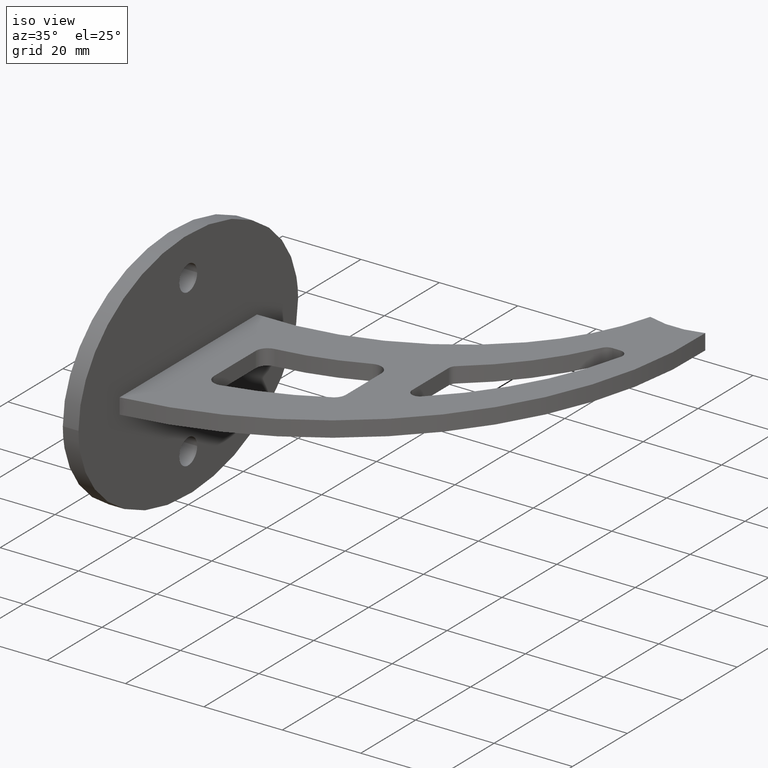
[diagram: clean part render]
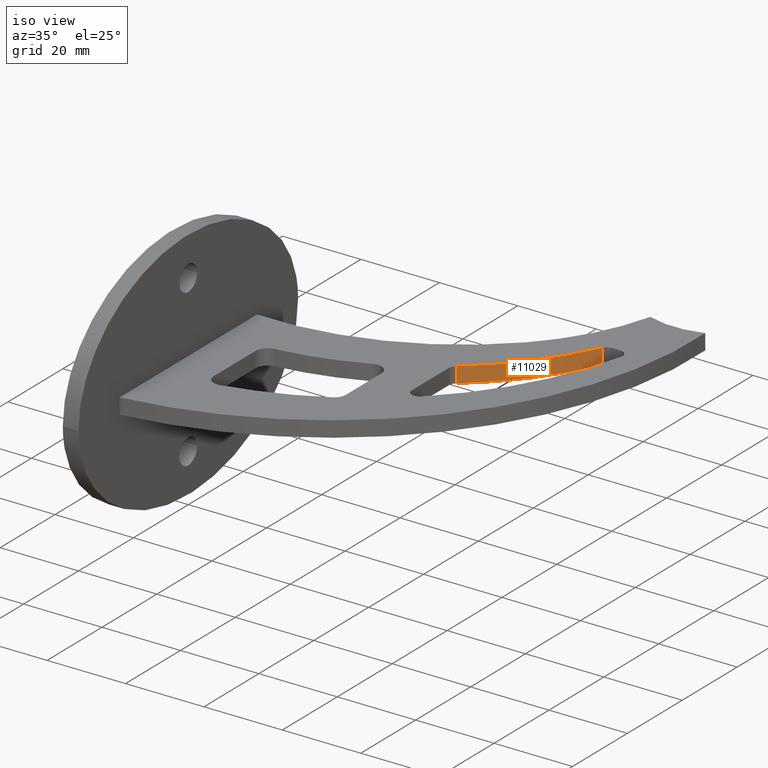
[diagram: same view with one face highlighted and labeled with its STEP entity id]
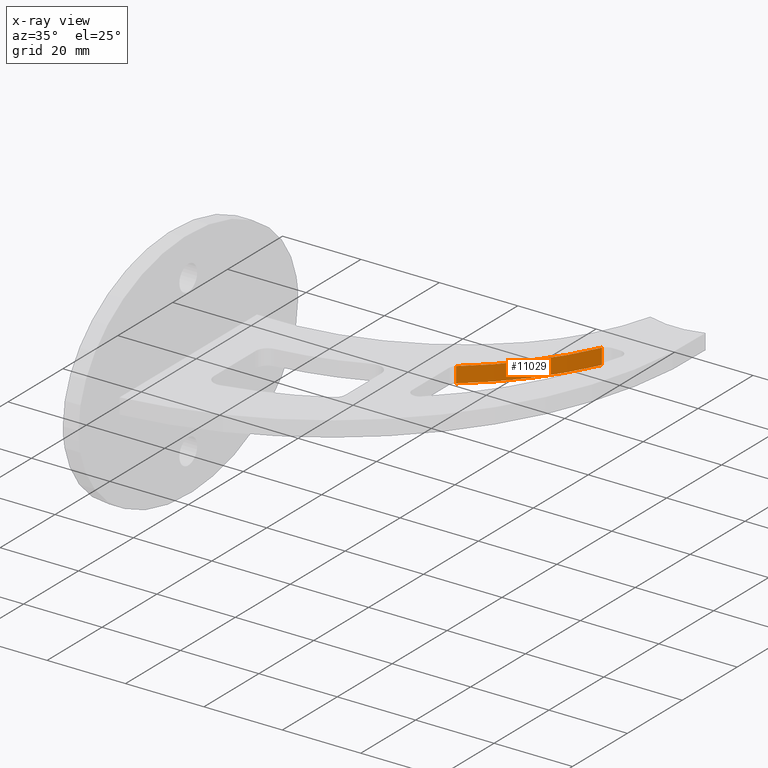
[diagram: x-ray of the same camera — body ghosted, the highlighted face saturated]
A machine part, iso view. The second image highlights one B-rep face of the part: STEP entity #11029.
The next image is the same camera in x-ray: the body ghosted, the highlighted face saturated — about 0% of this face is hidden behind the body in this view.
In plain terms, the highlighted cylindrical surface (partial cylindrical patch) has radius 70 mm, axis along (-0, -0, -1).
Its self-contained STEP definition (entity closure, byte-faithful):
#637 = CARTESIAN_POINT ( 'NONE',  ( 68.48590686522324233, 52.85352541475134558, 2.000000000000000000 ) ) ;
#999 = EDGE_LOOP ( 'NONE', ( #12267, #5095, #2312, #2774 ) ) ;
#1538 = CARTESIAN_POINT ( 'NONE',  ( 48.75501255925698985, 27.94317935478339621, -2.000000000000000000 ) ) ;
#1712 = CIRCLE ( 'NONE', #7121, 69.99999999999998579 ) ;
#1797 = EDGE_CURVE ( 'NONE', #7285, #4428, #1712, .T. ) ;
#2206 = DIRECTION ( 'NONE',  ( -0.000000000000000000, 0.000000000000000000, 1.000000000000000000 ) ) ;
#2302 = VECTOR ( 'NONE', #11137, 1000.000000000000000 ) ;
#2312 = ORIENTED_EDGE ( 'NONE', *, *, #1797, .F. ) ;
#2774 = ORIENTED_EDGE ( 'NONE', *, *, #5399, .T. ) ;
#2934 = AXIS2_PLACEMENT_3D ( 'NONE', #8016, #2206, #8949 ) ;
#3128 = EDGE_CURVE ( 'NONE', #8038, #4428, #10509, .T. ) ;
#3262 = CARTESIAN_POINT ( 'NONE',  ( 5.180452133363093736, 82.72691493104838401, 2.000000000000000000 ) ) ;
#4428 = VERTEX_POINT ( 'NONE', #7551 ) ;
#5095 = ORIENTED_EDGE ( 'NONE', *, *, #3128, .T. ) ;
#5292 = DIRECTION ( 'NONE',  ( -0.000000000000000000, 0.000000000000000000, 1.000000000000000000 ) ) ;
#5399 = EDGE_CURVE ( 'NONE', #7285, #12242, #8542, .T. ) ;
#5704 = CYLINDRICAL_SURFACE ( 'NONE', #8389, 70.00000000000000000 ) ;
#6109 = VECTOR ( 'NONE', #8453, 1000.000000000000000 ) ;
#6267 = DIRECTION ( 'NONE',  ( 1.000000000000000000, 0.000000000000000000, 0.000000000000000000 ) ) ;
#7063 = DIRECTION ( 'NONE',  ( -0.000000000000000000, -0.000000000000000000, -1.000000000000000000 ) ) ;
#7121 = AXIS2_PLACEMENT_3D ( 'NONE', #3262, #5292, #6267 ) ;
#7285 = VERTEX_POINT ( 'NONE', #11034 ) ;
#7405 = CIRCLE ( 'NONE', #2934, 70.00000000000000000 ) ;
#7551 = CARTESIAN_POINT ( 'NONE',  ( 68.48590686522324233, 52.85352541475134558, 2.000000000000000000 ) ) ;
#8016 = CARTESIAN_POINT ( 'NONE',  ( 5.180452133363093736, 82.72691493104838401, -2.000000000000000000 ) ) ;
#8038 = VERTEX_POINT ( 'NONE', #11470 ) ;
#8039 = DIRECTION ( 'NONE',  ( -1.000000000000000000, 0.000000000000000000, 0.000000000000000000 ) ) ;
#8112 = EDGE_CURVE ( 'NONE', #12242, #8038, #7405, .T. ) ;
#8389 = AXIS2_PLACEMENT_3D ( 'NONE', #10843, #7063, #8039 ) ;
#8453 = DIRECTION ( 'NONE',  ( 0.000000000000000000, 0.000000000000000000, 1.000000000000000000 ) ) ;
#8542 = LINE ( 'NONE', #10081, #2302 ) ;
#8949 = DIRECTION ( 'NONE',  ( 1.000000000000000000, 0.000000000000000000, 0.000000000000000000 ) ) ;
#10081 = CARTESIAN_POINT ( 'NONE',  ( 48.75501255925699695, 27.94317935478340331, 2.000000000000000000 ) ) ;
#10509 = LINE ( 'NONE', #637, #6109 ) ;
#10843 = CARTESIAN_POINT ( 'NONE',  ( 5.180452133363093736, 82.72691493104838401, 2.000000000000000000 ) ) ;
#11029 = ADVANCED_FACE ( 'NONE', ( #12079 ), #5704, .T. ) ;
#11034 = CARTESIAN_POINT ( 'NONE',  ( 48.75501255925698274, 27.94317935478341042, 2.000000000000000000 ) ) ;
#11137 = DIRECTION ( 'NONE',  ( -0.000000000000000000, -0.000000000000000000, -1.000000000000000000 ) ) ;
#11470 = CARTESIAN_POINT ( 'NONE',  ( 68.48590686522324233, 52.85352541475133847, -2.000000000000000000 ) ) ;
#12079 = FACE_OUTER_BOUND ( 'NONE', #999, .T. ) ;
#12242 = VERTEX_POINT ( 'NONE', #1538 ) ;
#12267 = ORIENTED_EDGE ( 'NONE', *, *, #8112, .T. ) ;